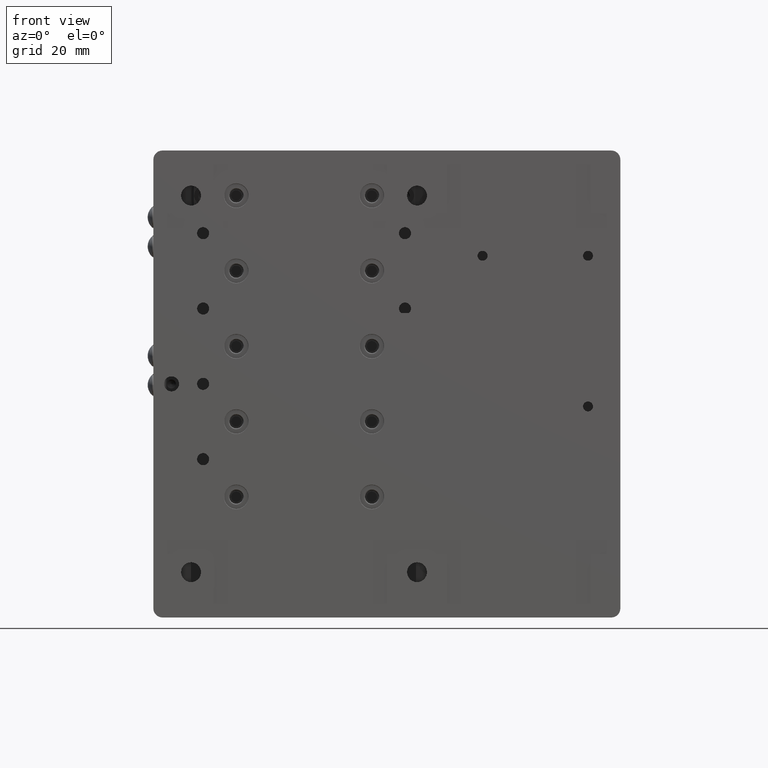
[diagram: clean part render]
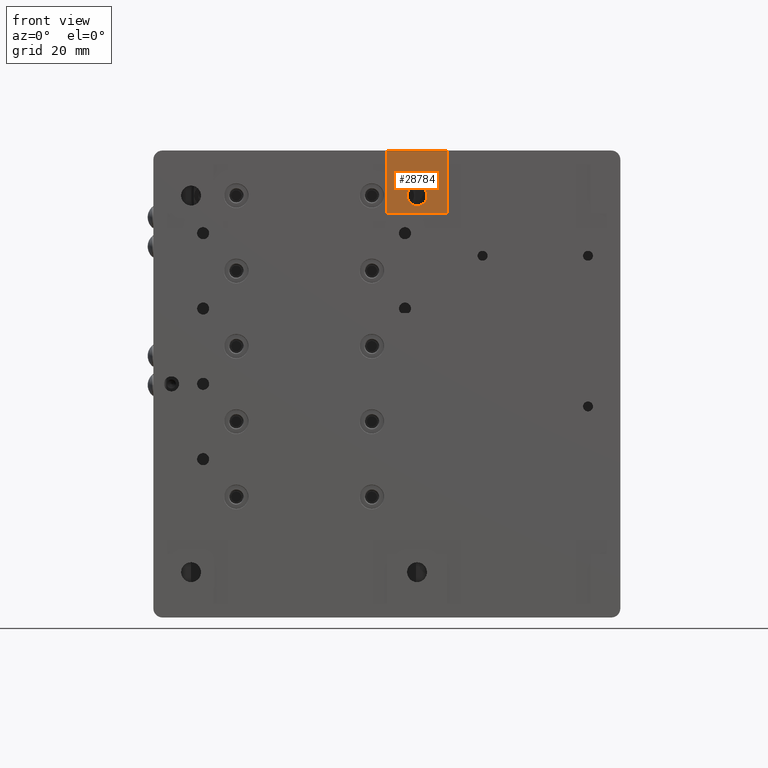
[diagram: same view with one face highlighted and labeled with its STEP entity id]
A machine part, front view. The second image highlights one B-rep face of the part: STEP entity #28784.
In plain terms, the highlighted planar face has unit normal (0, -1, 0).
Its self-contained STEP definition (entity closure, byte-faithful):
#1930 = CARTESIAN_POINT ( 'NONE',  ( 37.50000000000006395, 3.469446951953614189E-15, 38.30000000000001847 ) ) ;
#2764 = LINE ( 'NONE', #19245, #55267 ) ;
#5894 = FACE_BOUND ( 'NONE', #47863, .T. ) ;
#8744 = DIRECTION ( 'NONE',  ( 0.000000000000000000, 0.000000000000000000, 1.000000000000000000 ) ) ;
#9562 = VECTOR ( 'NONE', #25565, 1000.000000000000000 ) ;
#10559 = AXIS2_PLACEMENT_3D ( 'NONE', #29972, #47047, #8744 ) ;
#12324 = VERTEX_POINT ( 'NONE', #44442 ) ;
#14241 = CARTESIAN_POINT ( 'NONE',  ( 47.50000000000002842, 3.198396408832238080E-15, 50.00000000000002132 ) ) ;
#15976 = VERTEX_POINT ( 'NONE', #25896 ) ;
#16809 = VECTOR ( 'NONE', #52012, 1000.000000000000000 ) ;
#18965 = EDGE_CURVE ( 'NONE', #46359, #15976, #46319, .T. ) ;
#19245 = CARTESIAN_POINT ( 'NONE',  ( 27.50000000000002487, 3.089976191583687637E-15, 29.00000000000002487 ) ) ;
#19645 = ORIENTED_EDGE ( 'NONE', *, *, #40575, .T. ) ;
#19806 = DIRECTION ( 'NONE',  ( 1.000000000000000000, 0.000000000000000000, 0.000000000000000000 ) ) ;
#20810 = CARTESIAN_POINT ( 'NONE',  ( 27.50000000000002487, 3.306816626080788524E-15, 50.00000000000002132 ) ) ;
#22435 = EDGE_CURVE ( 'NONE', #27313, #12324, #39963, .T. ) ;
#24516 = VECTOR ( 'NONE', #46580, 1000.000000000000000 ) ;
#24571 = CARTESIAN_POINT ( 'NONE',  ( 27.50000000000002487, 3.252606517456513302E-15, 50.00000000000002132 ) ) ;
#25288 = CARTESIAN_POINT ( 'NONE',  ( -49.99999999999997158, 3.469446951953614189E-15, 50.00000000000002132 ) ) ;
#25565 = DIRECTION ( 'NONE',  ( -1.000000000000000000, 0.000000000000000000, -0.000000000000000000 ) ) ;
#25896 = CARTESIAN_POINT ( 'NONE',  ( 27.50000000000002487, 3.144186300207962859E-15, 29.00000000000002487 ) ) ;
#26106 = LINE ( 'NONE', #25288, #9562 ) ;
#27313 = VERTEX_POINT ( 'NONE', #47299 ) ;
#27694 = FACE_OUTER_BOUND ( 'NONE', #35593, .T. ) ;
#28784 = ADVANCED_FACE ( 'NONE', ( #27694, #5894 ), #34975, .T. ) ;
#29972 = CARTESIAN_POINT ( 'NONE',  ( 37.50000000000006395, 3.469446951953614189E-15, 35.00000000000002132 ) ) ;
#34975 = PLANE ( 'NONE',  #41934 ) ;
#35236 = DIRECTION ( 'NONE',  ( 1.833032289668531677E-17, -1.000000000000000000, 0.000000000000000000 ) ) ;
#35593 = EDGE_LOOP ( 'NONE', ( #41818, #19645, #47282, #38614 ) ) ;
#38614 = ORIENTED_EDGE ( 'NONE', *, *, #41695, .T. ) ;
#39963 = LINE ( 'NONE', #14241, #16809 ) ;
#40044 = CIRCLE ( 'NONE', #10559, 3.299999999999997158 ) ;
#40550 = CARTESIAN_POINT ( 'NONE',  ( -49.99999999999997158, 1.680513367352531873E-15, 50.00000000000002132 ) ) ;
#40575 = EDGE_CURVE ( 'NONE', #12324, #46359, #26106, .T. ) ;
#41071 = VERTEX_POINT ( 'NONE', #1930 ) ;
#41695 = EDGE_CURVE ( 'NONE', #15976, #27313, #2764, .T. ) ;
#41818 = ORIENTED_EDGE ( 'NONE', *, *, #22435, .T. ) ;
#41934 = AXIS2_PLACEMENT_3D ( 'NONE', #40550, #35236, #52337 ) ;
#44442 = CARTESIAN_POINT ( 'NONE',  ( 47.50000000000002842, 3.361026734705063745E-15, 50.00000000000002132 ) ) ;
#46319 = LINE ( 'NONE', #20810, #24516 ) ;
#46359 = VERTEX_POINT ( 'NONE', #24571 ) ;
#46580 = DIRECTION ( 'NONE',  ( -0.000000000000000000, 0.000000000000000000, -1.000000000000000000 ) ) ;
#47047 = DIRECTION ( 'NONE',  ( -0.000000000000000000, 1.000000000000000000, -0.000000000000000000 ) ) ;
#47282 = ORIENTED_EDGE ( 'NONE', *, *, #18965, .T. ) ;
#47299 = CARTESIAN_POINT ( 'NONE',  ( 47.50000000000002842, 3.306816626080788524E-15, 29.00000000000002487 ) ) ;
#47863 = EDGE_LOOP ( 'NONE', ( #48928 ) ) ;
#48928 = ORIENTED_EDGE ( 'NONE', *, *, #54802, .T. ) ;
#52012 = DIRECTION ( 'NONE',  ( 0.000000000000000000, 0.000000000000000000, 1.000000000000000000 ) ) ;
#52337 = DIRECTION ( 'NONE',  ( 1.000000000000000000, 1.833032289668531677E-17, 0.000000000000000000 ) ) ;
#54802 = EDGE_CURVE ( 'NONE', #41071, #41071, #40044, .T. ) ;
#55267 = VECTOR ( 'NONE', #19806, 1000.000000000000000 ) ;